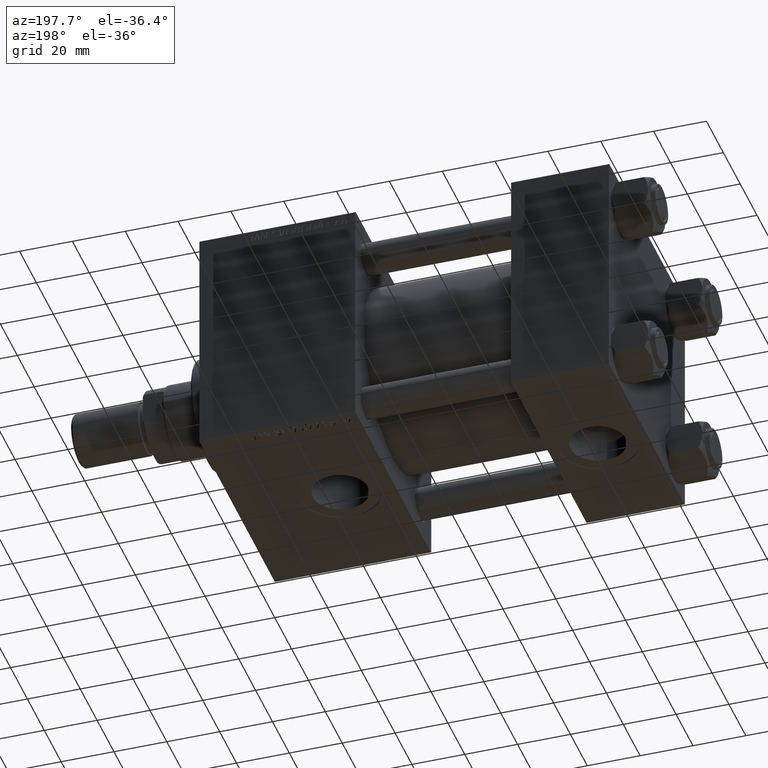
[diagram: clean part render]
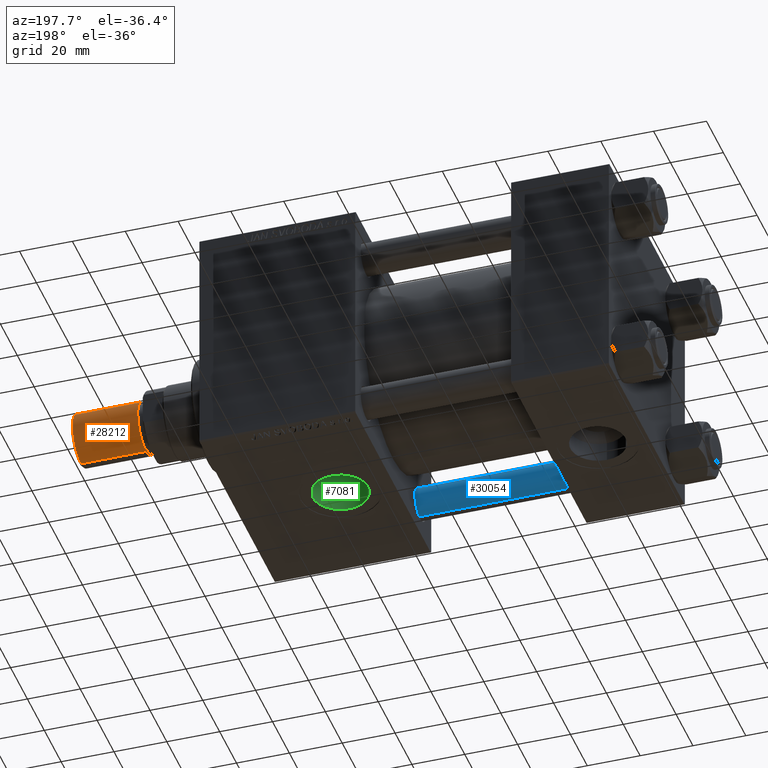
[diagram: same view with three faces highlighted in distinct colors, each labeled with its STEP entity id]
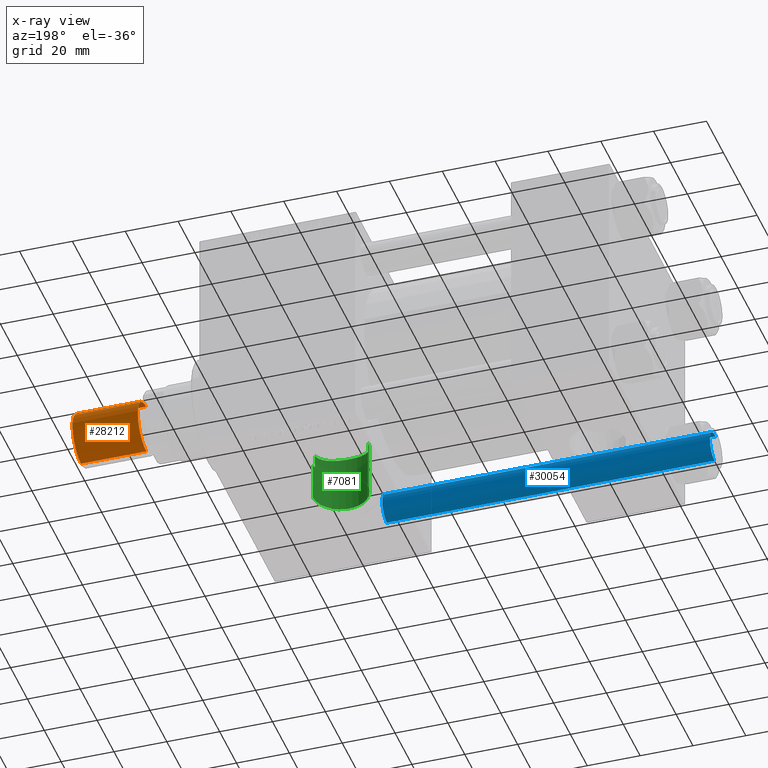
[diagram: x-ray of the same camera — body ghosted, the three highlighted faces saturated]
A machine part, auxiliary view with three faces highlighted in distinct colors.
The next image is the same camera in x-ray (body ghosted, the three faces saturated) — at least one of them is partly hidden behind the body in this view.
Their STEP definitions:

[orange] entity #28212 — the highlighted cylindrical surface (edge-blend (fillet) strip) has radius 10 mm, axis along (1, -0, -0).
#1349 = ORIENTED_EDGE ( 'NONE', *, *, #15684, .T. ) ;
#1599 = EDGE_CURVE ( 'NONE', #33974, #31643, #50390, .T. ) ;
#2184 = EDGE_CURVE ( 'NONE', #46534, #2696, #32158, .T. ) ;
#2696 = VERTEX_POINT ( 'NONE', #18974 ) ;
#3945 = CARTESIAN_POINT ( 'NONE',  ( 10.00000000000000000, 1.224646799147353256E-15, 0.8000000000000055955 ) ) ;
#5282 = FACE_OUTER_BOUND ( 'NONE', #29438, .T. ) ;
#5589 = DIRECTION ( 'NONE',  ( -0.000000000000000000, -0.000000000000000000, 1.000000000000000000 ) ) ;
#8674 = ORIENTED_EDGE ( 'NONE', *, *, #13820, .F. ) ;
#8879 = AXIS2_PLACEMENT_3D ( 'NONE', #44243, #31946, #12974 ) ;
#10279 = ORIENTED_EDGE ( 'NONE', *, *, #2184, .F. ) ;
#10462 = DIRECTION ( 'NONE',  ( 1.000000000000000000, 0.000000000000000000, 0.000000000000000000 ) ) ;
#11691 = DIRECTION ( 'NONE',  ( -0.000000000000000000, -0.000000000000000000, -1.000000000000000000 ) ) ;
#12551 = AXIS2_PLACEMENT_3D ( 'NONE', #45564, #5589, #10462 ) ;
#12974 = DIRECTION ( 'NONE',  ( -1.000000000000000000, 0.000000000000000000, 0.000000000000000000 ) ) ;
#13820 = EDGE_CURVE ( 'NONE', #33974, #46534, #18289, .T. ) ;
#15684 = EDGE_CURVE ( 'NONE', #31643, #2696, #21536, .T. ) ;
#17579 = DIRECTION ( 'NONE',  ( 0.000000000000000000, 0.000000000000000000, 1.000000000000000000 ) ) ;
#18289 = CIRCLE ( 'NONE', #27310, 10.00000000000000000 ) ;
#18974 = CARTESIAN_POINT ( 'NONE',  ( -10.00000000000000000, 0.000000000000000000, 0.8000000000000055955 ) ) ;
#20303 = ORIENTED_EDGE ( 'NONE', *, *, #1599, .T. ) ;
#21171 = VECTOR ( 'NONE', #11691, 1000.000000000000000 ) ;
#21536 = CIRCLE ( 'NONE', #12551, 10.00000000000000000 ) ;
#22431 = DIRECTION ( 'NONE',  ( 1.000000000000000000, 0.000000000000000000, 0.000000000000000000 ) ) ;
#24241 = CYLINDRICAL_SURFACE ( 'NONE', #8879, 10.00000000000000000 ) ;
#27310 = AXIS2_PLACEMENT_3D ( 'NONE', #44759, #17579, #22431 ) ;
#27709 = VECTOR ( 'NONE', #40347, 1000.000000000000000 ) ;
#28212 = ADVANCED_FACE ( 'NONE', ( #5282 ), #24241, .T. ) ;
#29326 = CARTESIAN_POINT ( 'NONE',  ( -10.00000000000000000, 0.000000000000000000, 25.50000000000000000 ) ) ;
#29438 = EDGE_LOOP ( 'NONE', ( #8674, #20303, #1349, #10279 ) ) ;
#29848 = CARTESIAN_POINT ( 'NONE',  ( 10.00000000000000000, 1.224646799147353256E-15, 25.50000000000000000 ) ) ;
#31643 = VERTEX_POINT ( 'NONE', #3945 ) ;
#31946 = DIRECTION ( 'NONE',  ( -0.000000000000000000, -0.000000000000000000, -1.000000000000000000 ) ) ;
#32158 = LINE ( 'NONE', #32414, #27709 ) ;
#32414 = CARTESIAN_POINT ( 'NONE',  ( -10.00000000000000000, 0.000000000000000000, 25.50000000000000000 ) ) ;
#33974 = VERTEX_POINT ( 'NONE', #29848 ) ;
#40347 = DIRECTION ( 'NONE',  ( -0.000000000000000000, -0.000000000000000000, -1.000000000000000000 ) ) ;
#44243 = CARTESIAN_POINT ( 'NONE',  ( 0.000000000000000000, 0.000000000000000000, 25.50000000000000000 ) ) ;
#44759 = CARTESIAN_POINT ( 'NONE',  ( 0.000000000000000000, 0.000000000000000000, 25.50000000000000000 ) ) ;
#45564 = CARTESIAN_POINT ( 'NONE',  ( 0.000000000000000000, 0.000000000000000000, 0.8000000000000055955 ) ) ;
#46534 = VERTEX_POINT ( 'NONE', #29326 ) ;
#46795 = CARTESIAN_POINT ( 'NONE',  ( 10.00000000000000000, 1.224646799147353256E-15, 25.50000000000000000 ) ) ;
#50390 = LINE ( 'NONE', #46795, #21171 ) ;

[blue] entity #30054 — the highlighted cylindrical surface (edge-blend (fillet) strip) has radius 6 mm, axis along (-1, -0, -0).
#411 = DIRECTION ( 'NONE',  ( 1.000000000000000000, 0.000000000000000000, 0.000000000000000000 ) ) ;
#1565 = EDGE_CURVE ( 'NONE', #15862, #3488, #48188, .T. ) ;
#3488 = VERTEX_POINT ( 'NONE', #40360 ) ;
#3522 = CARTESIAN_POINT ( 'NONE',  ( 0.000000000000000000, 0.000000000000000000, 0.4999999999999865663 ) ) ;
#4857 = AXIS2_PLACEMENT_3D ( 'NONE', #24715, #20880, #36527 ) ;
#5502 = FACE_OUTER_BOUND ( 'NONE', #26506, .T. ) ;
#6045 = ORIENTED_EDGE ( 'NONE', *, *, #10294, .T. ) ;
#6313 = EDGE_CURVE ( 'NONE', #3488, #10793, #40797, .T. ) ;
#6565 = CARTESIAN_POINT ( 'NONE',  ( 6.000000000000000888, 7.347880794884120722E-16, 125.0000000000000000 ) ) ;
#7285 = ORIENTED_EDGE ( 'NONE', *, *, #42248, .F. ) ;
#7524 = CIRCLE ( 'NONE', #15720, 6.000000000000000888 ) ;
#10294 = EDGE_CURVE ( 'NONE', #10793, #24649, #7524, .T. ) ;
#10793 = VERTEX_POINT ( 'NONE', #25960 ) ;
#15720 = AXIS2_PLACEMENT_3D ( 'NONE', #3522, #49424, #19150 ) ;
#15862 = VERTEX_POINT ( 'NONE', #31178 ) ;
#17715 = CARTESIAN_POINT ( 'NONE',  ( -6.000000000000000888, 0.000000000000000000, 125.0000000000000000 ) ) ;
#18868 = VECTOR ( 'NONE', #37722, 1000.000000000000000 ) ;
#19150 = DIRECTION ( 'NONE',  ( 1.000000000000000000, 0.000000000000000000, 0.000000000000000000 ) ) ;
#20880 = DIRECTION ( 'NONE',  ( -0.000000000000000000, -0.000000000000000000, -1.000000000000000000 ) ) ;
#23966 = DIRECTION ( 'NONE',  ( 0.000000000000000000, 0.000000000000000000, -1.000000000000000000 ) ) ;
#24649 = VERTEX_POINT ( 'NONE', #42042 ) ;
#24715 = CARTESIAN_POINT ( 'NONE',  ( 0.000000000000000000, 0.000000000000000000, 125.0000000000000000 ) ) ;
#25148 = ORIENTED_EDGE ( 'NONE', *, *, #6313, .T. ) ;
#25960 = CARTESIAN_POINT ( 'NONE',  ( -6.000000000000000888, 0.000000000000000000, 0.4999999999999865663 ) ) ;
#26506 = EDGE_LOOP ( 'NONE', ( #7285, #33213, #25148, #6045 ) ) ;
#30054 = ADVANCED_FACE ( 'NONE', ( #5502 ), #44715, .T. ) ;
#30133 = LINE ( 'NONE', #6565, #42787 ) ;
#31178 = CARTESIAN_POINT ( 'NONE',  ( 6.000000000000000888, 7.347880794884120722E-16, 124.5000000000000000 ) ) ;
#33213 = ORIENTED_EDGE ( 'NONE', *, *, #1565, .T. ) ;
#34241 = DIRECTION ( 'NONE',  ( -0.000000000000000000, -0.000000000000000000, -1.000000000000000000 ) ) ;
#36527 = DIRECTION ( 'NONE',  ( -1.000000000000000000, 0.000000000000000000, 0.000000000000000000 ) ) ;
#37722 = DIRECTION ( 'NONE',  ( -0.000000000000000000, -0.000000000000000000, -1.000000000000000000 ) ) ;
#39353 = CARTESIAN_POINT ( 'NONE',  ( 0.000000000000000000, 0.000000000000000000, 124.5000000000000000 ) ) ;
#40360 = CARTESIAN_POINT ( 'NONE',  ( -6.000000000000000888, 0.000000000000000000, 124.5000000000000000 ) ) ;
#40797 = LINE ( 'NONE', #17715, #18868 ) ;
#42042 = CARTESIAN_POINT ( 'NONE',  ( 6.000000000000000888, 7.347880794884120722E-16, 0.4999999999999865663 ) ) ;
#42248 = EDGE_CURVE ( 'NONE', #15862, #24649, #30133, .T. ) ;
#42787 = VECTOR ( 'NONE', #34241, 1000.000000000000000 ) ;
#44715 = CYLINDRICAL_SURFACE ( 'NONE', #4857, 6.000000000000000888 ) ;
#48188 = CIRCLE ( 'NONE', #48289, 6.000000000000000888 ) ;
#48289 = AXIS2_PLACEMENT_3D ( 'NONE', #39353, #23966, #411 ) ;
#49424 = DIRECTION ( 'NONE',  ( -0.000000000000000000, -0.000000000000000000, 1.000000000000000000 ) ) ;

[green] entity #7081 — the highlighted cylindrical surface (edge-blend (fillet) strip) has radius 10.48 mm, axis along (-0, -0, -1).
#83 = CARTESIAN_POINT ( 'NONE',  ( 109.1664433524416324, -7.971438572255708621, -23.69861894829194071 ) ) ;
#414 = CARTESIAN_POINT ( 'NONE',  ( 126.4800000000000040, 1.283429845506425883E-15, -44.79999999999999716 ) ) ;
#589 = CARTESIAN_POINT ( 'NONE',  ( 111.0248463731256834, -9.229325018898082433, -23.23452960213940344 ) ) ;
#893 = EDGE_CURVE ( 'NONE', #20298, #50548, #11063, .T. ) ;
#1141 = VERTEX_POINT ( 'NONE', #22520 ) ;
#1950 = CARTESIAN_POINT ( 'NONE',  ( 105.5199999999999960, 0.000000000000000000, -44.79999999999999716 ) ) ;
#2106 = CARTESIAN_POINT ( 'NONE',  ( 125.5188295761803516, -4.396109388522557282, -24.61219324324231295 ) ) ;
#3473 = DIRECTION ( 'NONE',  ( -0.000000000000000000, -0.000000000000000000, -1.000000000000000000 ) ) ;
#3922 = CARTESIAN_POINT ( 'NONE',  ( 105.5818071920056980, -1.308581473532915540, -24.97391262842696591 ) ) ;
#4166 = ORIENTED_EDGE ( 'NONE', *, *, #18340, .T. ) ;
#4442 = CARTESIAN_POINT ( 'NONE',  ( 110.2003815447181552, -8.734860140023581465, -23.42509368751976595 ) ) ;
#4936 = CARTESIAN_POINT ( 'NONE',  ( 113.7415073116948605, -10.23891767422755983, -22.80721217129551448 ) ) ;
#5948 = CARTESIAN_POINT ( 'NONE',  ( 122.5881842815777816, -8.156529320537673655, -23.63288506601807626 ) ) ;
#6568 = CYLINDRICAL_SURFACE ( 'NONE', #22958, 10.48000000000000398 ) ;
#7081 = ADVANCED_FACE ( 'NONE', ( #26034 ), #6568, .F. ) ;
#8015 = CARTESIAN_POINT ( 'NONE',  ( 108.6967142337210106, -7.543102876757537878, -23.83992232486124507 ) ) ;
#8528 = CARTESIAN_POINT ( 'NONE',  ( 112.4807482312075848, -9.892986188757095789, -22.96012941614321079 ) ) ;
#9547 = CARTESIAN_POINT ( 'NONE',  ( 121.8219997909139209, -8.737602026521665621, -23.42697631423588334 ) ) ;
#9797 = CARTESIAN_POINT ( 'NONE',  ( 118.2749142050031850, -10.25057149502836396, -22.80271936120304233 ) ) ;
#11063 = LINE ( 'NONE', #14407, #31062 ) ;
#11349 = B_SPLINE_CURVE_WITH_KNOTS ( 'NONE', 3,
 ( #27228, #31090, #3922, #42881, #12380, #19551, #11616, #47230, #12126, #39034, #27733, #8015, #83, #43392, #4442, #43646, #589, #47477, #8528, #16722, #4936, #48240, #21320, #13643, #17732, #20824, #25413, #9797, #32619, #41063, #21576, #9547, #5948, #37230, #20562, #32368, #25163, #36475, #47991, #17223, #2106, #12890, #33379, #48754, #36970 ),
 .UNSPECIFIED., .F., .F.,
 ( 4, 2, 2, 2, 2, 2, 2, 2, 2, 2, 2, 1, 2, 2, 2, 2, 2, 2, 2, 2, 2, 2, 4 ),
 ( 0.000000000000000000, 0.001950832952766666560, 0.002926249429150000383, 0.003901665905533333988, 0.005852498858299998163, 0.007803331811066661038, 0.009754164763833325646, 0.01072958124021665752, 0.01170499771659998939, 0.01365583066936661497, 0.01463124714574992775, 0.01560666362213323881, 0.01658208009851655160, 0.01755749657489986612, 0.01950832952766649170, 0.02145916248043311728, 0.02340999543319974285, 0.02438541190958303656, 0.02536082838596633374, 0.02731166133873294891, 0.02828707781511628078, 0.02926249429149961612, 0.03121332724426627639 ),
 .UNSPECIFIED. ) ;
#11616 = CARTESIAN_POINT ( 'NONE',  ( 106.1227396704031349, -3.517841578496965216, -24.75314304094079176 ) ) ;
#12126 = CARTESIAN_POINT ( 'NONE',  ( 106.7655333888333047, -4.996635887004860166, -24.50194468867981001 ) ) ;
#12380 = CARTESIAN_POINT ( 'NONE',  ( 105.8374462348555767, -2.580507450933922087, -24.86846075284820046 ) ) ;
#12543 = EDGE_CURVE ( 'NONE', #35631, #47067, #11349, .T. ) ;
#12890 = CARTESIAN_POINT ( 'NONE',  ( 125.6489970835539509, -4.102504435787793113, -24.66295334884136992 ) ) ;
#13308 = EDGE_CURVE ( 'NONE', #50548, #44330, #30540, .T. ) ;
#13643 = CARTESIAN_POINT ( 'NONE',  ( 115.6725736275517278, -10.47996116567042613, -22.69736579358632866 ) ) ;
#14407 = CARTESIAN_POINT ( 'NONE',  ( 126.4800000000000040, 1.283429845506426277E-15, 45.00100000000001899 ) ) ;
#14586 = CARTESIAN_POINT ( 'NONE',  ( 126.4800000000000040, -3.211609313723368512E-16, -30.00000000000000000 ) ) ;
#14865 = CARTESIAN_POINT ( 'NONE',  ( 116.0000000000000000, 0.000000000000000000, -44.79999999999999716 ) ) ;
#15331 = CARTESIAN_POINT ( 'NONE',  ( 126.4210485436893237, -1.289340916902932843, -29.97924172559974210 ) ) ;
#16722 = CARTESIAN_POINT ( 'NONE',  ( 113.4216632649265080, -10.16312239748898882, -22.84120449468249348 ) ) ;
#17223 = CARTESIAN_POINT ( 'NONE',  ( 125.2312658750376642, -4.971682270679453453, -24.50241231793251018 ) ) ;
#17593 = ORIENTED_EDGE ( 'NONE', *, *, #32513, .F. ) ;
#17732 = CARTESIAN_POINT ( 'NONE',  ( 116.3249356798893643, -10.48003868634413571, -22.69733000012451996 ) ) ;
#17847 = ORIENTED_EDGE ( 'NONE', *, *, #50067, .F. ) ;
#17931 = CARTESIAN_POINT ( 'NONE',  ( 105.5199999999999960, 0.000000000000000000, 45.00100000000001899 ) ) ;
#18340 = EDGE_CURVE ( 'NONE', #47067, #1141, #29618, .T. ) ;
#19448 = CARTESIAN_POINT ( 'NONE',  ( 105.5199999999999960, 0.000000000000000000, -25.00000000000000000 ) ) ;
#19551 = CARTESIAN_POINT ( 'NONE',  ( 106.0173339090779479, -3.206695409753053561, -24.79549280553514734 ) ) ;
#20298 = VERTEX_POINT ( 'NONE', #34950 ) ;
#20562 = CARTESIAN_POINT ( 'NONE',  ( 123.3089726448283869, -7.517432179555940230, -23.84407310758562915 ) ) ;
#20824 = CARTESIAN_POINT ( 'NONE',  ( 116.6542654199454034, -10.46472977730312870, -22.70441765318204119 ) ) ;
#21320 = CARTESIAN_POINT ( 'NONE',  ( 115.0235039550603773, -10.44949508551559347, -22.71146891957199543 ) ) ;
#21576 = CARTESIAN_POINT ( 'NONE',  ( 121.2799622129796120, -9.075577000269483108, -23.29658567718350071 ) ) ;
#22520 = CARTESIAN_POINT ( 'NONE',  ( 126.2999999999999972, -1.934011375354396822, -29.93759509379468753 ) ) ;
#22958 = AXIS2_PLACEMENT_3D ( 'NONE', #30387, #3473, #46019 ) ;
#25163 = CARTESIAN_POINT ( 'NONE',  ( 124.1765169174770591, -6.586323219591126765, -24.12178888262454635 ) ) ;
#25413 = CARTESIAN_POINT ( 'NONE',  ( 117.6368862508290078, -10.37226752492875548, -22.74688258904294358 ) ) ;
#26034 = FACE_OUTER_BOUND ( 'NONE', #48489, .T. ) ;
#26420 = DIRECTION ( 'NONE',  ( -0.000000000000000000, -0.000000000000000000, -1.000000000000000000 ) ) ;
#26967 = ORIENTED_EDGE ( 'NONE', *, *, #13308, .T. ) ;
#27228 = CARTESIAN_POINT ( 'NONE',  ( 105.5199999999999960, 0.000000000000000000, -25.00000000000000000 ) ) ;
#27733 = CARTESIAN_POINT ( 'NONE',  ( 107.8366666851092361, -6.602754969198477042, -24.11729512780176421 ) ) ;
#28964 = VECTOR ( 'NONE', #34000, 1000.000000000000000 ) ;
#29459 = DIRECTION ( 'NONE',  ( -0.000000000000000000, -0.000000000000000000, -1.000000000000000000 ) ) ;
#29618 = LINE ( 'NONE', #42169, #28964 ) ;
#30387 = CARTESIAN_POINT ( 'NONE',  ( 116.0000000000000000, 0.000000000000000000, 45.00100000000001899 ) ) ;
#30493 = DIRECTION ( 'NONE',  ( -1.000000000000000000, 0.000000000000000000, 0.000000000000000000 ) ) ;
#30540 = CIRCLE ( 'NONE', #34678, 10.48000000000000398 ) ;
#31062 = VECTOR ( 'NONE', #26420, 1000.000000000000000 ) ;
#31090 = CARTESIAN_POINT ( 'NONE',  ( 105.5200000000000387, -0.6601608298313249579, -25.00000000000000355 ) ) ;
#32368 = CARTESIAN_POINT ( 'NONE',  ( 123.5339987138302718, -7.291805948712756447, -23.91421447840230741 ) ) ;
#32513 = EDGE_CURVE ( 'NONE', #20298, #1141, #41932, .T. ) ;
#32619 = CARTESIAN_POINT ( 'NONE',  ( 119.5191464987685492, -9.892677015601911705, -22.96025190858004450 ) ) ;
#33379 = CARTESIAN_POINT ( 'NONE',  ( 125.9988722560858321, -3.204076007657264302, -24.80123261187419104 ) ) ;
#34000 = DIRECTION ( 'NONE',  ( -0.000000000000000000, -0.000000000000000000, -1.000000000000000000 ) ) ;
#34447 = ORIENTED_EDGE ( 'NONE', *, *, #893, .T. ) ;
#34678 = AXIS2_PLACEMENT_3D ( 'NONE', #14865, #37709, #30493 ) ;
#34950 = CARTESIAN_POINT ( 'NONE',  ( 126.4800000000000040, -3.211609313723368512E-16, -30.00000000000000000 ) ) ;
#35072 = CARTESIAN_POINT ( 'NONE',  ( 126.4800000000000040, -0.6446704584514660885, -30.00000000000000000 ) ) ;
#35631 = VERTEX_POINT ( 'NONE', #19448 ) ;
#36428 = CARTESIAN_POINT ( 'NONE',  ( 126.2999999999999972, -1.934011375354396822, -24.92507973909010133 ) ) ;
#36475 = CARTESIAN_POINT ( 'NONE',  ( 124.5617753468521869, -6.078148766063460329, -24.25639871560566974 ) ) ;
#36970 = CARTESIAN_POINT ( 'NONE',  ( 126.2999999999999972, -1.934011375354396822, -24.92507973909010133 ) ) ;
#37230 = CARTESIAN_POINT ( 'NONE',  ( 122.8365438491400710, -7.949499097166872197, -23.70352448557500225 ) ) ;
#37709 = DIRECTION ( 'NONE',  ( 0.000000000000000000, 0.000000000000000000, -1.000000000000000000 ) ) ;
#38014 = VECTOR ( 'NONE', #29459, 1000.000000000000000 ) ;
#39034 = CARTESIAN_POINT ( 'NONE',  ( 107.4437381693998503, -6.085402802302637859, -24.25447456549319725 ) ) ;
#41063 = CARTESIAN_POINT ( 'NONE',  ( 120.1305158875483272, -9.653130961559764245, -23.06326223111440399 ) ) ;
#41932 = B_SPLINE_CURVE_WITH_KNOTS ( 'NONE', 3,
 ( #14586, #35072, #15331, #42250 ),
 .UNSPECIFIED., .F., .F.,
 ( 4, 4 ),
 ( 0.001934011375354397324, 0.003868022750708794213 ),
 .UNSPECIFIED. ) ;
#42169 = CARTESIAN_POINT ( 'NONE',  ( 126.2999999999999972, -1.934011375354396822, 45.00100000000001899 ) ) ;
#42250 = CARTESIAN_POINT ( 'NONE',  ( 126.2999999999999972, -1.934011375354396822, -29.93759509379468753 ) ) ;
#42881 = CARTESIAN_POINT ( 'NONE',  ( 105.7624658305543903, -2.264613839882672952, -24.89927104389816748 ) ) ;
#43392 = CARTESIAN_POINT ( 'NONE',  ( 109.9333177349950859, -8.551520252980353121, -23.49284134805247248 ) ) ;
#43646 = CARTESIAN_POINT ( 'NONE',  ( 110.7456161584478878, -9.073301843224147234, -23.29609386993012876 ) ) ;
#44330 = VERTEX_POINT ( 'NONE', #1950 ) ;
#45854 = LINE ( 'NONE', #17931, #38014 ) ;
#46019 = DIRECTION ( 'NONE',  ( -1.000000000000000000, 0.000000000000000000, 0.000000000000000000 ) ) ;
#47067 = VERTEX_POINT ( 'NONE', #36428 ) ;
#47230 = CARTESIAN_POINT ( 'NONE',  ( 106.4771871709745596, -4.423433031421212469, -24.61313550369479231 ) ) ;
#47477 = CARTESIAN_POINT ( 'NONE',  ( 111.8825192181714243, -9.658443335916395256, -23.06099947694142571 ) ) ;
#47991 = CARTESIAN_POINT ( 'NONE',  ( 125.0731273901009786, -5.254819858100687746, -24.44311888910904784 ) ) ;
#48240 = CARTESIAN_POINT ( 'NONE',  ( 114.3808898847619417, -10.35928119115758506, -22.75279445186080096 ) ) ;
#48489 = EDGE_LOOP ( 'NONE', ( #17593, #34447, #26967, #17847, #48788, #4166 ) ) ;
#48754 = CARTESIAN_POINT ( 'NONE',  ( 126.1786094161472249, -2.580503443403392883, -24.87491648879075257 ) ) ;
#48788 = ORIENTED_EDGE ( 'NONE', *, *, #12543, .T. ) ;
#50067 = EDGE_CURVE ( 'NONE', #35631, #44330, #45854, .T. ) ;
#50548 = VERTEX_POINT ( 'NONE', #414 ) ;